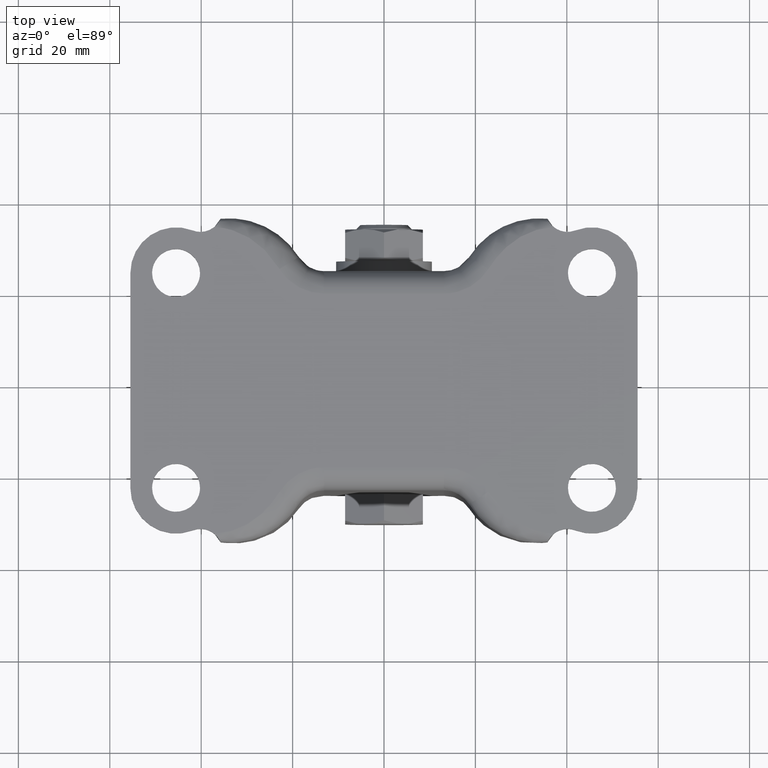
[diagram: clean part render]
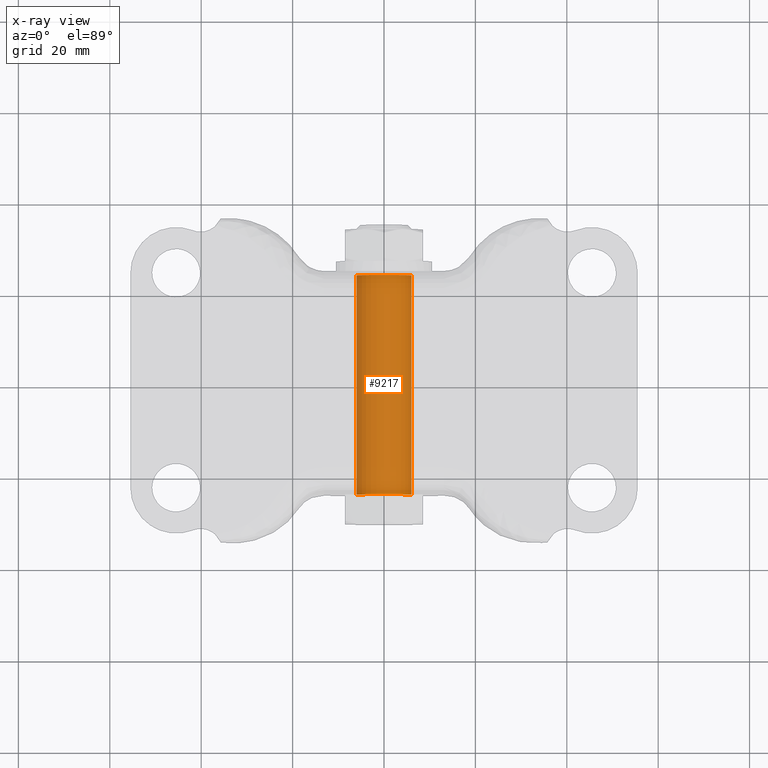
[diagram: x-ray — body ghosted, one internal face saturated and labeled with its STEP entity id]
A machine part, top view, then the same camera in x-ray: the body is ghosted and one INTERNAL B-rep face — a face not visible from any outside direction — is saturated and labeled: STEP entity #9217.
In plain terms, the highlighted face is a freeform B-spline surface patch.
Its self-contained STEP definition (entity closure, byte-faithful):
#9084=CARTESIAN_POINT('',(-0.000095000000016,-24.0,-53.500000000000000));
#9085=VERTEX_POINT('',#9084);
#9086=CARTESIAN_POINT('',(5.988713790519123,-24.0,-59.133708762593642));
#9087=VERTEX_POINT('',#9086);
#9088=CARTESIAN_POINT('',(-0.000095000000016,-24.0,-53.500000000000000));
#9089=CARTESIAN_POINT('',(5.644141401247937,-24.000000000000007,-53.499999999999993));
#9090=CARTESIAN_POINT('',(5.988713790519123,-24.000000000000007,-59.133708762593649));
#9098=(BOUNDED_CURVE()B_SPLINE_CURVE(2,(#9088,#9089,#9090),.UNSPECIFIED.,.F.,.U.)B_SPLINE_CURVE_WITH_KNOTS((3,3),(0.500000000000000,0.739332962236286),.UNSPECIFIED.)CURVE()GEOMETRIC_REPRESENTATION_ITEM()RATIONAL_B_SPLINE_CURVE((1.0,0.719603993289823,0.976072041661024))REPRESENTATION_ITEM(''));
#9099=EDGE_CURVE('',#9085,#9087,#9098,.T.);
#9101=CARTESIAN_POINT('',(-5.988903790519155,-24.0,-59.866291237406358));
#9102=VERTEX_POINT('',#9101);
#9103=CARTESIAN_POINT('',(-5.988903790519156,-23.999999999999996,-59.866291237406365));
#9104=CARTESIAN_POINT('',(-6.000095000000016,-24.000000000000004,-59.683316579890430));
#9105=CARTESIAN_POINT('',(-6.000095000000016,-24.0,-59.500000000000000));
#9106=CARTESIAN_POINT('',(-6.000095000000016,-23.999999999999996,-53.499999999999993));
#9107=CARTESIAN_POINT('',(-0.000095000000016,-24.0,-53.500000000000000));
#9115=(BOUNDED_CURVE()B_SPLINE_CURVE(2,(#9103,#9104,#9105,#9106,#9107),.UNSPECIFIED.,.F.,.U.)B_SPLINE_CURVE_WITH_KNOTS((3,2,3),(0.239332962236286,0.250000000000000,0.500000000000000),.UNSPECIFIED.)CURVE()GEOMETRIC_REPRESENTATION_ITEM()RATIONAL_B_SPLINE_CURVE((0.976072041661024,0.987502787896725,1.0,0.707106781186548,1.0))REPRESENTATION_ITEM(''));
#9116=EDGE_CURVE('',#9102,#9085,#9115,.T.);
#9151=CARTESIAN_POINT('',(-5.988903790531216,-25.200000000000010,-59.866291237209140));
#9152=CARTESIAN_POINT('',(-6.355195027740358,-25.200000000000014,-53.877482446677945));
#9153=CARTESIAN_POINT('',(-0.366386237209158,-25.200000000000010,-53.511191209468812));
#9154=CARTESIAN_POINT('',(5.622422553322043,-25.200000000000014,-53.144899972259672));
#9155=CARTESIAN_POINT('',(5.988713790531184,-25.200000000000010,-59.133708762790860));
#9156=CARTESIAN_POINT('',(-5.988903790531216,25.230000000000000,-59.866291237209140));
#9157=CARTESIAN_POINT('',(-6.355195027740358,25.230000000000004,-53.877482446677945));
#9158=CARTESIAN_POINT('',(-0.366386237209158,25.230000000000000,-53.511191209468812));
#9159=CARTESIAN_POINT('',(5.622422553322043,25.230000000000004,-53.144899972259672));
#9160=CARTESIAN_POINT('',(5.988713790531184,25.230000000000000,-59.133708762790860));
#9168=(BOUNDED_SURFACE()B_SPLINE_SURFACE(2,1,((#9151,#9156),(#9152,#9157),(#9153,#9158),(#9154,#9159),(#9155,#9160)),.UNSPECIFIED.,.F.,.F.,.U.)B_SPLINE_SURFACE_WITH_KNOTS((3,2,3),(2,2),(0.0,9.941125496954264,19.882250993908531),(0.0,50.430000000000007),.UNSPECIFIED.)GEOMETRIC_REPRESENTATION_ITEM()RATIONAL_B_SPLINE_SURFACE(((1.0,1.0),(0.707106781186548,0.707106781186548),(1.0,1.0),(0.707106781186548,0.707106781186548),(1.0,1.0)))REPRESENTATION_ITEM('')SURFACE());
#9169=ORIENTED_EDGE('',*,*,#9116,.T.);
#9170=ORIENTED_EDGE('',*,*,#9099,.T.);
#9171=CARTESIAN_POINT('',(5.988713790519123,24.0,-59.133708762593642));
#9172=VERTEX_POINT('',#9171);
#9173=CARTESIAN_POINT('',(5.988713790519123,-24.0,-59.133708762593642));
#9174=CARTESIAN_POINT('',(5.988713790519123,24.0,-59.133708762593642));
#9175=QUASI_UNIFORM_CURVE('',1,(#9173,#9174),.UNSPECIFIED.,.F.,.U.);
#9176=EDGE_CURVE('',#9087,#9172,#9175,.T.);
#9177=ORIENTED_EDGE('',*,*,#9176,.T.);
#9178=CARTESIAN_POINT('',(-0.000095000000016,24.0,-53.500000000000000));
#9179=VERTEX_POINT('',#9178);
#9180=CARTESIAN_POINT('',(-0.000095000000016,24.0,-53.500000000000000));
#9181=CARTESIAN_POINT('',(5.644141401247937,24.000000000000007,-53.499999999999993));
#9182=CARTESIAN_POINT('',(5.988713790519123,24.000000000000007,-59.133708762593649));
#9190=(BOUNDED_CURVE()B_SPLINE_CURVE(2,(#9180,#9181,#9182),.UNSPECIFIED.,.F.,.U.)B_SPLINE_CURVE_WITH_KNOTS((3,3),(0.500000000000000,0.739332962236286),.UNSPECIFIED.)CURVE()GEOMETRIC_REPRESENTATION_ITEM()RATIONAL_B_SPLINE_CURVE((1.0,0.719603993289823,0.976072041661024))REPRESENTATION_ITEM(''));
#9191=EDGE_CURVE('',#9179,#9172,#9190,.T.);
#9192=ORIENTED_EDGE('',*,*,#9191,.F.);
#9193=CARTESIAN_POINT('',(-5.988903790519155,24.0,-59.866291237406358));
#9194=VERTEX_POINT('',#9193);
#9195=CARTESIAN_POINT('',(-5.988903790519155,24.0,-59.866291237406358));
#9196=CARTESIAN_POINT('',(-6.000095000000016,24.0,-59.683316579890423));
#9197=CARTESIAN_POINT('',(-6.000095000000016,24.0,-59.500000000000000));
#9198=CARTESIAN_POINT('',(-6.000095000000016,23.999999999999996,-53.499999999999993));
#9199=CARTESIAN_POINT('',(-0.000095000000016,24.0,-53.500000000000000));
#9207=(BOUNDED_CURVE()B_SPLINE_CURVE(2,(#9195,#9196,#9197,#9198,#9199),.UNSPECIFIED.,.F.,.U.)B_SPLINE_CURVE_WITH_KNOTS((3,2,3),(0.239332962236286,0.250000000000000,0.500000000000000),.UNSPECIFIED.)CURVE()GEOMETRIC_REPRESENTATION_ITEM()RATIONAL_B_SPLINE_CURVE((0.976072041661024,0.987502787896725,1.0,0.707106781186548,1.0))REPRESENTATION_ITEM(''));
#9208=EDGE_CURVE('',#9194,#9179,#9207,.T.);
#9209=ORIENTED_EDGE('',*,*,#9208,.F.);
#9210=CARTESIAN_POINT('',(-5.988903790519155,-24.0,-59.866291237406358));
#9211=CARTESIAN_POINT('',(-5.988903790519155,24.0,-59.866291237406358));
#9212=QUASI_UNIFORM_CURVE('',1,(#9210,#9211),.UNSPECIFIED.,.F.,.U.);
#9213=EDGE_CURVE('',#9102,#9194,#9212,.T.);
#9214=ORIENTED_EDGE('',*,*,#9213,.F.);
#9215=EDGE_LOOP('',(#9169,#9170,#9177,#9192,#9209,#9214));
#9216=FACE_OUTER_BOUND('',#9215,.T.);
#9217=ADVANCED_FACE('',(#9216),#9168,.T.);